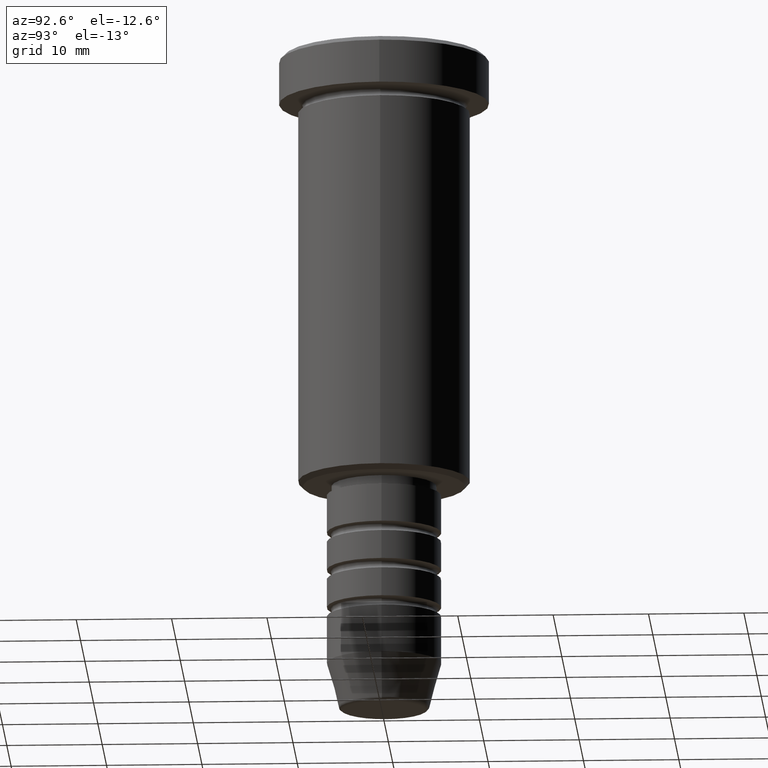
[diagram: clean part render]
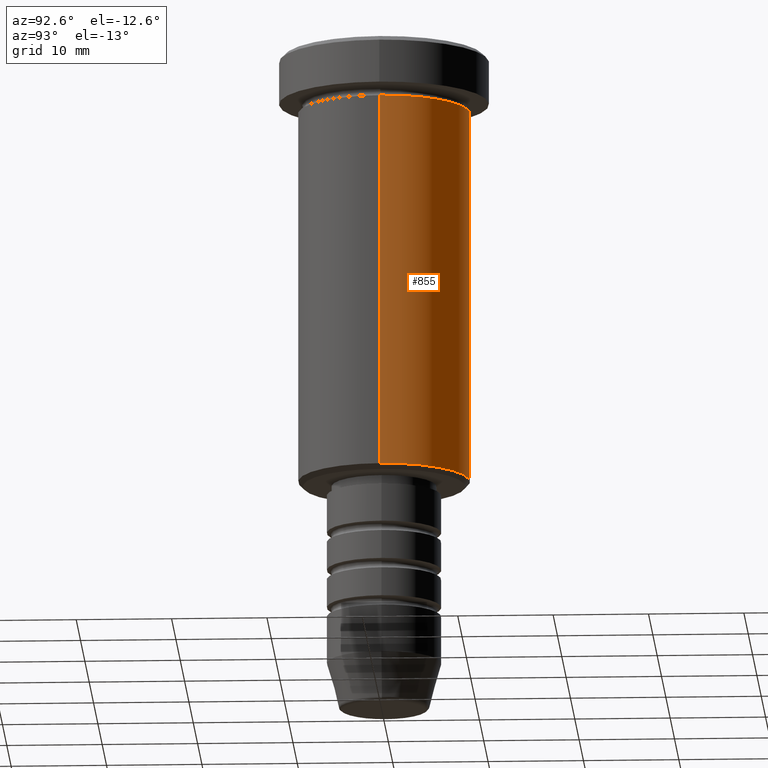
[diagram: same view with one face highlighted and labeled with its STEP entity id]
A machine part, auxiliary view. The second image highlights one B-rep face of the part: STEP entity #855.
In plain terms, the highlighted cylindrical surface (partial cylindrical patch) has radius 9 mm, axis along (-0, -0, 1).
Its self-contained STEP definition (entity closure, byte-faithful):
#52 = DIRECTION ( 'NONE',  ( -0.000000000000000000, -0.000000000000000000, 1.000000000000000000 ) ) ;
#65 = CARTESIAN_POINT ( 'NONE',  ( 9.000000000000000000, 0.000000000000000000, 0.000000000000000000 ) ) ;
#90 = AXIS2_PLACEMENT_3D ( 'NONE', #1030, #750, #1115 ) ;
#114 = EDGE_LOOP ( 'NONE', ( #837, #298, #576, #284 ) ) ;
#136 = DIRECTION ( 'NONE',  ( 1.000000000000000000, 0.000000000000000000, 0.000000000000000000 ) ) ;
#153 = CIRCLE ( 'NONE', #90, 9.000000000000000000 ) ;
#179 = EDGE_CURVE ( 'NONE', #905, #277, #946, .T. ) ;
#183 = DIRECTION ( 'NONE',  ( -1.000000000000000000, 0.000000000000000000, 0.000000000000000000 ) ) ;
#277 = VERTEX_POINT ( 'NONE', #776 ) ;
#284 = ORIENTED_EDGE ( 'NONE', *, *, #794, .F. ) ;
#294 = CARTESIAN_POINT ( 'NONE',  ( 0.000000000000000000, 0.000000000000000000, -45.50000000000000711 ) ) ;
#298 = ORIENTED_EDGE ( 'NONE', *, *, #179, .T. ) ;
#392 = VERTEX_POINT ( 'NONE', #1082 ) ;
#444 = EDGE_CURVE ( 'NONE', #877, #277, #153, .T. ) ;
#451 = VECTOR ( 'NONE', #1078, 1000.000000000000000 ) ;
#544 = AXIS2_PLACEMENT_3D ( 'NONE', #624, #52, #136 ) ;
#576 = ORIENTED_EDGE ( 'NONE', *, *, #444, .F. ) ;
#609 = CARTESIAN_POINT ( 'NONE',  ( 9.000000000000000000, 0.000000000000000000, -6.000000000000000000 ) ) ;
#624 = CARTESIAN_POINT ( 'NONE',  ( 0.000000000000000000, 0.000000000000000000, 0.000000000000000000 ) ) ;
#713 = LINE ( 'NONE', #65, #451 ) ;
#750 = DIRECTION ( 'NONE',  ( -0.000000000000000000, -0.000000000000000000, 1.000000000000000000 ) ) ;
#765 = DIRECTION ( 'NONE',  ( -0.000000000000000000, -0.000000000000000000, 1.000000000000000000 ) ) ;
#776 = CARTESIAN_POINT ( 'NONE',  ( -9.000000000000000000, 1.102182119232617714E-15, -6.000000000000000000 ) ) ;
#794 = EDGE_CURVE ( 'NONE', #392, #877, #713, .T. ) ;
#832 = DIRECTION ( 'NONE',  ( -0.000000000000000000, -0.000000000000000000, 1.000000000000000000 ) ) ;
#837 = ORIENTED_EDGE ( 'NONE', *, *, #957, .T. ) ;
#852 = CARTESIAN_POINT ( 'NONE',  ( -9.000000000000000000, 1.102182119232617714E-15, 0.000000000000000000 ) ) ;
#855 = ADVANCED_FACE ( 'NONE', ( #896 ), #872, .T. ) ;
#858 = VECTOR ( 'NONE', #765, 1000.000000000000000 ) ;
#872 = CYLINDRICAL_SURFACE ( 'NONE', #544, 9.000000000000000000 ) ;
#877 = VERTEX_POINT ( 'NONE', #609 ) ;
#896 = FACE_OUTER_BOUND ( 'NONE', #114, .T. ) ;
#905 = VERTEX_POINT ( 'NONE', #1160 ) ;
#946 = LINE ( 'NONE', #852, #858 ) ;
#957 = EDGE_CURVE ( 'NONE', #392, #905, #999, .T. ) ;
#999 = CIRCLE ( 'NONE', #1144, 9.000000000000000000 ) ;
#1030 = CARTESIAN_POINT ( 'NONE',  ( 0.000000000000000000, 0.000000000000000000, -6.000000000000000000 ) ) ;
#1078 = DIRECTION ( 'NONE',  ( -0.000000000000000000, -0.000000000000000000, 1.000000000000000000 ) ) ;
#1082 = CARTESIAN_POINT ( 'NONE',  ( 9.000000000000000000, 0.000000000000000000, -45.50000000000000711 ) ) ;
#1115 = DIRECTION ( 'NONE',  ( 1.000000000000000000, 0.000000000000000000, 0.000000000000000000 ) ) ;
#1144 = AXIS2_PLACEMENT_3D ( 'NONE', #294, #832, #183 ) ;
#1160 = CARTESIAN_POINT ( 'NONE',  ( -9.000000000000000000, 1.102182119232617714E-15, -45.50000000000000711 ) ) ;